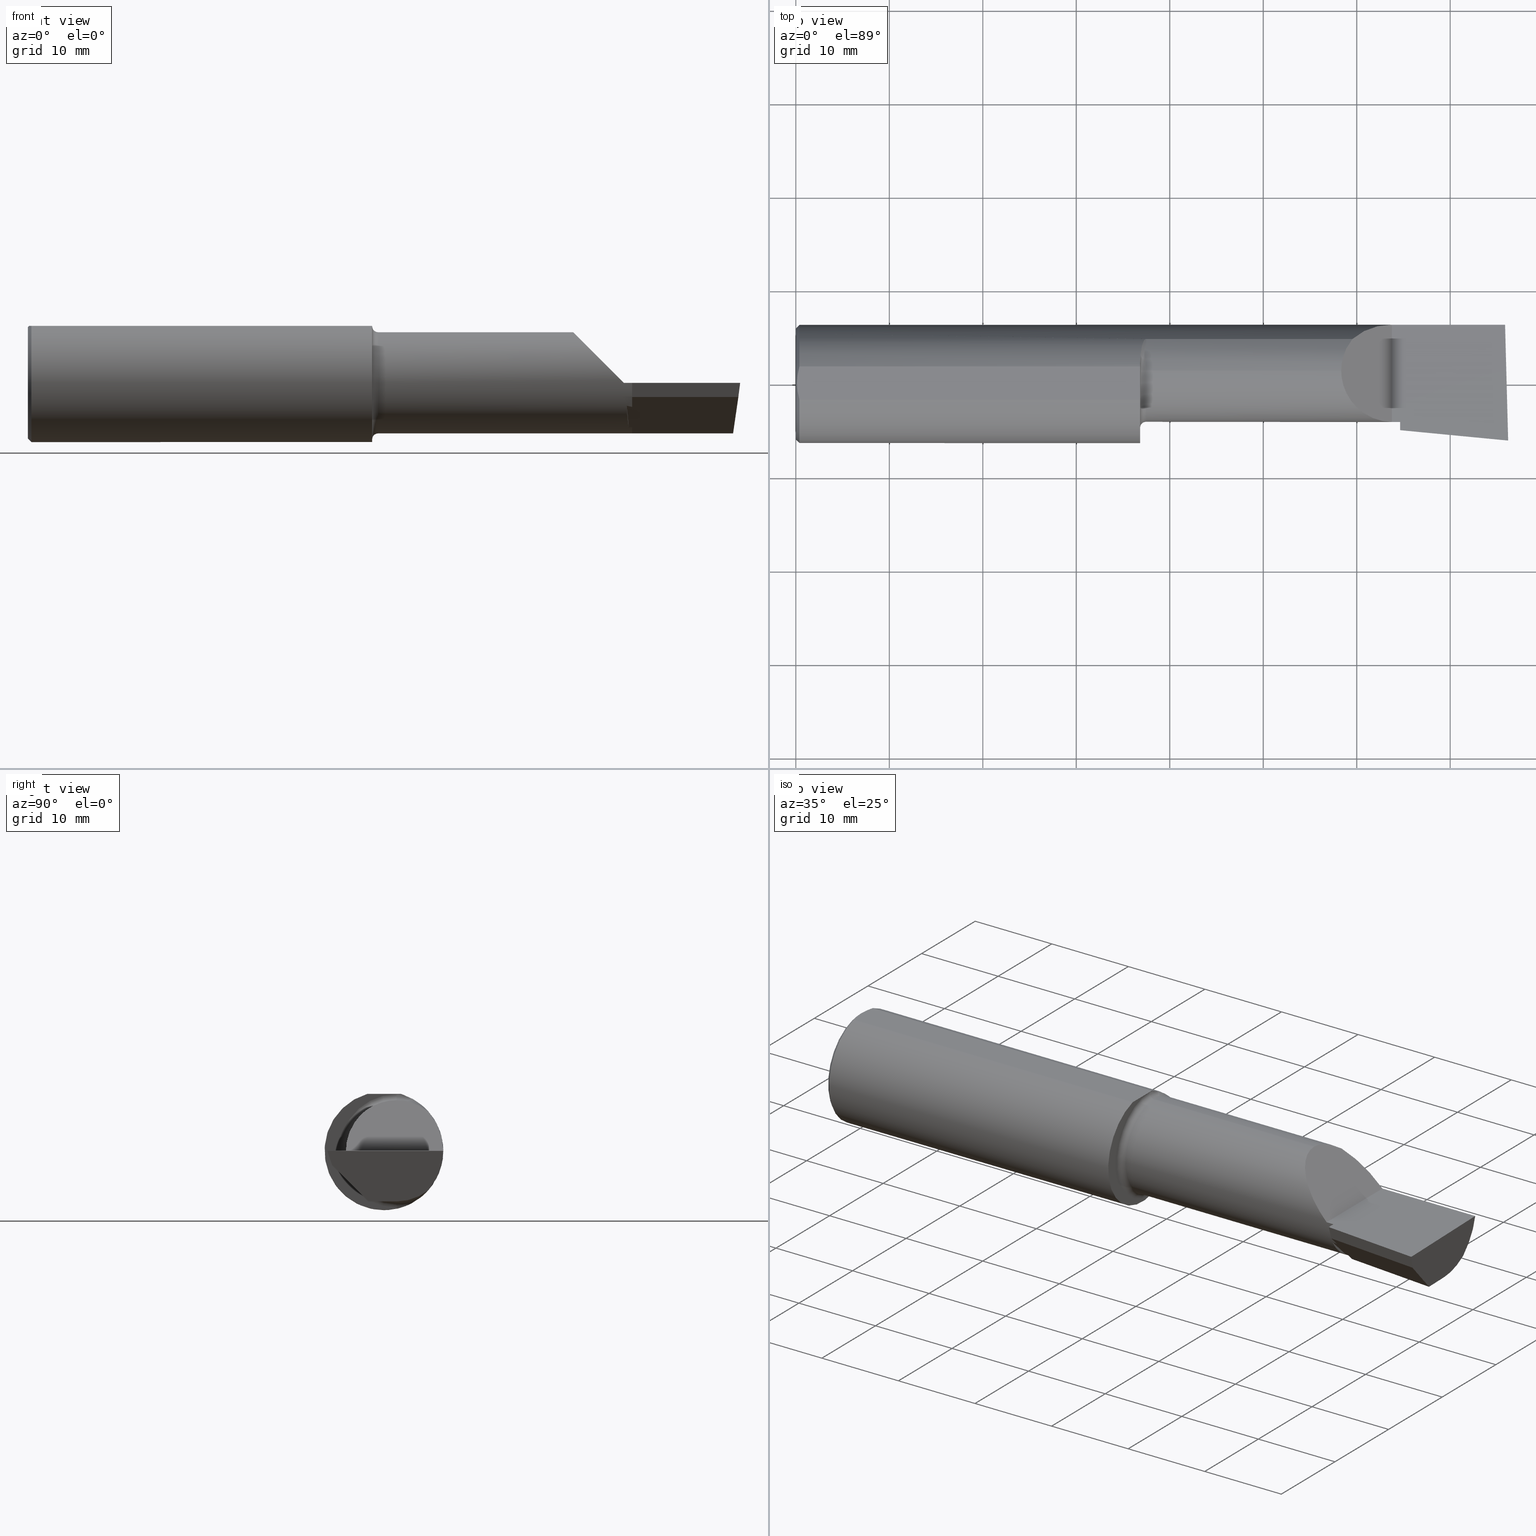
[diagram: canonical four-view strip — front | top / right | iso, engineering-drawing reading convention]
A machine part, canonical four-view strip (front | top / right | iso — engineering-drawing reading convention). The complete STEP part file that produces these views, byte-faithful:
ISO-10303-21;
HEADER;
FILE_DESCRIPTION (( 'STEP AP203' ),
    '1' );
FILE_NAME ('212148-LHB4901500.STEP',
    '2024-08-27T21:22:36',
    ( '' ),
    ( '' ),
    'SwSTEP 2.0',
    'SolidWorks 2024',
    '' );
FILE_SCHEMA (( 'CONFIG_CONTROL_DESIGN' ));
ENDSEC;

DATA;
#1 = CARTESIAN_POINT ( 'NONE',  ( 1.461285743882607902, 0.1704402150608106403, -0.1827701868778706662 ) ) ;
#2 = ORIENTED_EDGE ( 'NONE', *, *, #28, .T. ) ;
#3 = PERSON_AND_ORGANIZATION_ROLE ( 'creator' ) ;
#4 = DIRECTION ( 'NONE',  ( -1.000000000000000000, -0.000000000000000000, -0.000000000000000000 ) ) ;
#5 = AXIS2_PLACEMENT_3D ( 'NONE', #576, #339, #519 ) ;
#6 = VERTEX_POINT ( 'NONE', #417 ) ;
#7 = CC_DESIGN_APPROVAL ( #453, ( #139 ) ) ;
#8 =( NAMED_UNIT ( * ) SI_UNIT ( $, .STERADIAN. ) SOLID_ANGLE_UNIT ( ) );
#9 = CARTESIAN_POINT ( 'NONE',  ( 2.344079160038592846, 0.1868028301886826281, 0.1659208399614056639 ) ) ;
#10 = CARTESIAN_POINT ( 'NONE',  ( 0.000000000000000000, 0.06997856814768384226, 0.2398499999999999244 ) ) ;
#11 = PERSON_AND_ORGANIZATION_ROLE ( 'design_supplier' ) ;
#12 = DIRECTION ( 'NONE',  ( 0.000000000000000000, -1.000000000000000000, 2.565624566557734573E-16 ) ) ;
#13 = ORIENTED_EDGE ( 'NONE', *, *, #38, .T. ) ;
#14 = CARTESIAN_POINT ( 'NONE',  ( 1.450000000000000178, 0.08036415094339564857, -0.2365726648265752963 ) ) ;
#15 = EDGE_CURVE ( 'NONE', #276, #450, #540, .T. ) ;
#16 = DIRECTION ( 'NONE',  ( 0.000000000000000000, 0.000000000000000000, 1.000000000000000000 ) ) ;
#17 = VECTOR ( 'NONE', #261, 39.37007874015748143 ) ;
#18 = AXIS2_PLACEMENT_3D ( 'NONE', #208, #438, #625 ) ;
#19 = EDGE_CURVE ( 'NONE', #725, #155, #345, .T. ) ;
#20 = CARTESIAN_POINT ( 'NONE',  ( 2.519046046773246061, -0.1728339770796962771, -0.05999999999999962308 ) ) ;
#21 = CARTESIAN_POINT ( 'NONE',  ( 0.01499999999999998904, 3.059780027669661931E-17, 0.2498499999999999888 ) ) ;
#22 = CARTESIAN_POINT ( 'NONE',  ( 1.474999999999999867, 0.05299999999999998462, 0.000000000000000000 ) ) ;
#23 = FACE_OUTER_BOUND ( 'NONE', #340, .T. ) ;
#24 = CARTESIAN_POINT ( 'NONE',  ( 2.545000000000000373, -0.1753330585328639335, -0.05999999999999962308 ) ) ;
#25 = ORIENTED_EDGE ( 'NONE', *, *, #755, .T. ) ;
#26 = AXIS2_PLACEMENT_3D ( 'NONE', #583, #172, #645 ) ;
#27 = CARTESIAN_POINT ( 'NONE',  ( 1.450000000000000178, 0.08036415094339564857, -0.2365726648265752963 ) ) ;
#28 = EDGE_CURVE ( 'NONE', #43, #215, #728, .T. ) ;
#29 = ORIENTED_EDGE ( 'NONE', *, *, #153, .T. ) ;
#30 = FACE_OUTER_BOUND ( 'NONE', #422, .T. ) ;
#31 = CARTESIAN_POINT ( 'NONE',  ( 0.000000000000000000, 0.000000000000000000, 0.000000000000000000 ) ) ;
#32 = ORIENTED_EDGE ( 'NONE', *, *, #759, .F. ) ;
#33 = DATE_AND_TIME ( #542, #742 ) ;
#34 = DIRECTION ( 'NONE',  ( -1.000000000000000000, -0.000000000000000000, -0.000000000000000000 ) ) ;
#35 = EDGE_CURVE ( 'NONE', #457, #362, #78, .T. ) ;
#36 = PLANE ( 'NONE',  #717 ) ;
#37 = ORIENTED_EDGE ( 'NONE', *, *, #117, .F. ) ;
#38 = EDGE_CURVE ( 'NONE', #116, #679, #66, .T. ) ;
#39 = VECTOR ( 'NONE', #762, 39.37007874015748143 ) ;
#40 = AXIS2_PLACEMENT_3D ( 'NONE', #41, #230, #278 ) ;
#41 = CARTESIAN_POINT ( 'NONE',  ( 2.519046046773246061, -0.1728339770796962771, -0.05999999999999962308 ) ) ;
#42 = CARTESIAN_POINT ( 'NONE',  ( 2.968970726278978400, 0.1868028301886790754, -0.1659208399614091056 ) ) ;
#43 = VERTEX_POINT ( 'NONE', #214 ) ;
#44 = CARTESIAN_POINT ( 'NONE',  ( 2.545000000000000373, -0.1601499999999999868, 6.926044079467337534E-16 ) ) ;
#45 = FACE_OUTER_BOUND ( 'NONE', #490, .T. ) ;
#46 = ORIENTED_EDGE ( 'NONE', *, *, #264, .F. ) ;
#47 = EDGE_CURVE ( 'NONE', #267, #62, #600, .T. ) ;
#48 = MECHANICAL_CONTEXT ( 'NONE', #503, 'mechanical' ) ;
#49 = CARTESIAN_POINT ( 'NONE',  ( 7.317949869918442680E-32, -0.1601500000000000423, 6.926044079467337534E-16 ) ) ;
#50 = ADVANCED_FACE ( 'NONE', ( #209 ), #81, .T. ) ;
#51 = ORIENTED_EDGE ( 'NONE', *, *, #317, .T. ) ;
#52 = CIRCLE ( 'NONE', #398, 0.2131500000000001172 ) ;
#53 = VECTOR ( 'NONE', #677, 39.37007874015748143 ) ;
#54 = CARTESIAN_POINT ( 'NONE',  ( 2.296849999999997838, 0.05299999999999998462, 0.2131500000000000616 ) ) ;
#55 = ORIENTED_EDGE ( 'NONE', *, *, #28, .F. ) ;
#56 = APPLICATION_PROTOCOL_DEFINITION ( 'international standard', 'config_control_design', 1994, #503 ) ;
#57 = DIRECTION ( 'NONE',  ( 1.000000000000000000, 0.000000000000000000, 0.000000000000000000 ) ) ;
#58 = ORIENTED_EDGE ( 'NONE', *, *, #297, .F. ) ;
#59 = APPROVAL_DATE_TIME ( #590, #241 ) ;
#60 = CARTESIAN_POINT ( 'NONE',  ( 0.004999999999999696527, 5.665694225652706815E-17, 0.2398500000000000076 ) ) ;
#61 = EDGE_CURVE ( 'NONE', #642, #697, #189, .T. ) ;
#62 = VERTEX_POINT ( 'NONE', #325 ) ;
#63 = PERSON_AND_ORGANIZATION ( #507, #367 ) ;
#64 = CIRCLE ( 'NONE', #103, 0.2498499999999999888 ) ;
#65 = CARTESIAN_POINT ( 'NONE',  ( 2.531082512009717345, -0.04783050615766543806, -0.1877927888072089824 ) ) ;
#66 = CIRCLE ( 'NONE', #657, 0.2131500000000001172 ) ;
#67 = VERTEX_POINT ( 'NONE', #24 ) ;
#68 = AXIS2_PLACEMENT_3D ( 'NONE', #143, #381, #488 ) ;
#69 = SECURITY_CLASSIFICATION_LEVEL ( 'unclassified' ) ;
#70 = DIRECTION ( 'NONE',  ( -1.000000000000000000, -0.000000000000000000, -0.000000000000000000 ) ) ;
#71 = ORIENTED_EDGE ( 'NONE', *, *, #185, .F. ) ;
#72 = ADVANCED_FACE ( 'NONE', ( #318 ), #296, .F. ) ;
#73 = CARTESIAN_POINT ( 'NONE',  ( 1.451227564404961479, 0.1217005943024282583, -0.2193523119135143140 ) ) ;
#74 = CARTESIAN_POINT ( 'NONE',  ( 2.296849999999997838, -0.07186037918017462722, 0.2131500000000000339 ) ) ;
#75 = EDGE_CURVE ( 'NONE', #520, #272, #445, .T. ) ;
#76 = CARTESIAN_POINT ( 'NONE',  ( 2.545000000000000373, -0.1943384830701201382, 6.925661515187917647E-16 ) ) ;
#77 = DIRECTION ( 'NONE',  ( 0.000000000000000000, 0.000000000000000000, 1.000000000000000000 ) ) ;
#78 = CIRCLE ( 'NONE', #126, 0.2381500000000001394 ) ;
#79 = AXIS2_PLACEMENT_3D ( 'NONE', #662, #560, #321 ) ;
#80 = DIRECTION ( 'NONE',  ( -1.000000000000000000, -0.000000000000000000, -0.000000000000000000 ) ) ;
#81 = CYLINDRICAL_SURFACE ( 'NONE', #331, 0.2131500000000000616 ) ;
#82 = ORIENTED_EDGE ( 'NONE', *, *, #273, .F. ) ;
#83 = CARTESIAN_POINT ( 'NONE',  ( 1.474999999999999867, 0.05299999999999998462, 0.000000000000000000 ) ) ;
#84 = DIRECTION ( 'NONE',  ( -1.000000000000000000, -0.000000000000000000, -0.000000000000000000 ) ) ;
#85 = ORIENTED_EDGE ( 'NONE', *, *, #566, .F. ) ;
#86 = PLANE ( 'NONE',  #68 ) ;
#87 = CARTESIAN_POINT ( 'NONE',  ( 2.968970726278978400, 0.1868028301886790754, -0.1659208399614091056 ) ) ;
#88 = ORIENTED_EDGE ( 'NONE', *, *, #755, .F. ) ;
#89 = APPROVAL_DATE_TIME ( #33, #355 ) ;
#90 = VECTOR ( 'NONE', #34, 39.37007874015748143 ) ;
#91 = DIRECTION ( 'NONE',  ( -1.000000000000000000, -0.000000000000000000, -0.000000000000000000 ) ) ;
#92 = CARTESIAN_POINT ( 'NONE',  ( 1.450000000000000178, 0.08036415094339564857, 0.2365726648265752963 ) ) ;
#93 = VERTEX_POINT ( 'NONE', #671 ) ;
#94 = EDGE_CURVE ( 'NONE', #653, #267, #466, .T. ) ;
#95 = CARTESIAN_POINT ( 'NONE',  ( 1.450000000000000178, 0.05299999999999998462, 0.2381500000000001394 ) ) ;
#96 =( BOUNDED_CURVE ( )  B_SPLINE_CURVE ( 3, ( #522, #235, #386, #622 ),
 .UNSPECIFIED., .F., .T. ) 
 B_SPLINE_CURVE_WITH_KNOTS ( ( 4, 4 ),
 ( 0.6220170400680000711, 1.348282100702885566 ),
 .UNSPECIFIED. ) 
 CURVE ( )  GEOMETRIC_REPRESENTATION_ITEM ( )  RATIONAL_B_SPLINE_CURVE ( ( 1.000000000000000000, 0.9565258159410993111, 0.9565258159410993111, 1.000000000000000000 ) ) 
 REPRESENTATION_ITEM ( '' )  );
#97 = CARTESIAN_POINT ( 'NONE',  ( 3.028162759442341478, -0.2374125321900709129, 0.2380275191859496930 ) ) ;
#98 = ORIENTED_EDGE ( 'NONE', *, *, #120, .T. ) ;
#99 = CC_DESIGN_DATE_AND_TIME_ASSIGNMENT ( #476, #521, ( #635 ) ) ;
#100 = CARTESIAN_POINT ( 'NONE',  ( 1.449999999999999289, 0.09103905338546504356, 0.2329463816641086094 ) ) ;
#101 = CARTESIAN_POINT ( 'NONE',  ( 2.545000000000000373, -0.1952503421026562103, 0.002878732955684672624 ) ) ;
#102 = ORIENTED_EDGE ( 'NONE', *, *, #203, .F. ) ;
#103 = AXIS2_PLACEMENT_3D ( 'NONE', #456, #165, #225 ) ;
#104 = LINE ( 'NONE', #335, #53 ) ;
#105 = DIRECTION ( 'NONE',  ( 0.000000000000000000, 1.000000000000000000, -1.138839417068644240E-16 ) ) ;
#106 = ORIENTED_EDGE ( 'NONE', *, *, #664, .T. ) ;
#107 = CARTESIAN_POINT ( 'NONE',  ( 2.545000000000000373, -0.1345157694617468702, -0.1013447517297714345 ) ) ;
#108 = LINE ( 'NONE', #101, #434 ) ;
#109 = ORIENTED_EDGE ( 'NONE', *, *, #131, .T. ) ;
#110 = CARTESIAN_POINT ( 'NONE',  ( 1.452700393434439796, 0.1312406203802480853, 0.2128933010837854023 ) ) ;
#111 = DIRECTION ( 'NONE',  ( -0.000000000000000000, 2.565624566557734573E-16, 1.000000000000000000 ) ) ;
#112 = ORIENTED_EDGE ( 'NONE', *, *, #748, .T. ) ;
#113 = VECTOR ( 'NONE', #397, 39.37007874015748854 ) ;
#114 =( GEOMETRIC_REPRESENTATION_CONTEXT ( 3 ) GLOBAL_UNCERTAINTY_ASSIGNED_CONTEXT ( ( #380 ) ) GLOBAL_UNIT_ASSIGNED_CONTEXT ( ( #419, #125, #8 ) ) REPRESENTATION_CONTEXT ( 'NONE', 'WORKASPACE' ) );
#115 = CARTESIAN_POINT ( 'NONE',  ( 0.005899890343961516036, 0.02378560009989256346, 0.2398500000000000354 ) ) ;
#116 = VERTEX_POINT ( 'NONE', #442 ) ;
#117 = EDGE_CURVE ( 'NONE', #173, #520, #382, .T. ) ;
#118 = DIRECTION ( 'NONE',  ( 0.9953961983671787417, -0.09584575252022418945, -1.044132340447638199E-16 ) ) ;
#119 = VERTEX_POINT ( 'NONE', #492 ) ;
#120 = EDGE_CURVE ( 'NONE', #753, #220, #423, .T. ) ;
#121 = CARTESIAN_POINT ( 'NONE',  ( 1.457342647456792317, 0.1582204157543817824, 0.1936739931581292762 ) ) ;
#122 = APPLICATION_CONTEXT ( 'configuration controlled 3d designs of mechanical parts and assemblies' ) ;
#123 = DIRECTION ( 'NONE',  ( 1.000000000000000000, 0.000000000000000000, 0.000000000000000000 ) ) ;
#124 = ORIENTED_EDGE ( 'NONE', *, *, #659, .F. ) ;
#125 =( NAMED_UNIT ( * ) PLANE_ANGLE_UNIT ( ) SI_UNIT ( $, .RADIAN. ) );
#126 = AXIS2_PLACEMENT_3D ( 'NONE', #734, #489, #270 ) ;
#127 = CARTESIAN_POINT ( 'NONE',  ( 1.450000000000000178, 0.05300000000000001238, -0.2381500000000001394 ) ) ;
#128 = AXIS2_PLACEMENT_3D ( 'NONE', #159, #152, #620 ) ;
#129 = CARTESIAN_POINT ( 'NONE',  ( 0.000000000000000000, 0.000000000000000000, 0.000000000000000000 ) ) ;
#130 = ADVANCED_FACE ( 'NONE', ( #138 ), #275, .F. ) ;
#131 = EDGE_CURVE ( 'NONE', #149, #642, #701, .T. ) ;
#132 = DIRECTION ( 'NONE',  ( -1.000000000000000000, 0.000000000000000000, 1.056584362726326271E-16 ) ) ;
#133 = EDGE_LOOP ( 'NONE', ( #557, #98, #440, #455, #109, #356, #102, #569, #106, #243 ) ) ;
#134 = CARTESIAN_POINT ( 'NONE',  ( 1.450000000000000178, 0.06997856814768384226, 0.2398500000000000076 ) ) ;
#135 = CARTESIAN_POINT ( 'NONE',  ( 2.545000000000000373, -0.1345157694617468702, -0.1013447517297714345 ) ) ;
#136 = VERTEX_POINT ( 'NONE', #546 ) ;
#137 = CARTESIAN_POINT ( 'NONE',  ( 0.004999999999999696527, 5.665694225652706815E-17, 0.2398500000000000076 ) ) ;
#138 = FACE_OUTER_BOUND ( 'NONE', #348, .T. ) ;
#139 = SECURITY_CLASSIFICATION ( '', '', #69 ) ;
#140 = ORIENTED_EDGE ( 'NONE', *, *, #474, .T. ) ;
#141 = CARTESIAN_POINT ( 'NONE',  ( 2.988460977461673274, -0.06683733097719032901, -0.2131499999999999506 ) ) ;
#142 = ORIENTED_EDGE ( 'NONE', *, *, #506, .T. ) ;
#143 = CARTESIAN_POINT ( 'NONE',  ( 2.545000000000000373, -0.2043384830701200638, 0.000000000000000000 ) ) ;
#144 = CARTESIAN_POINT ( 'NONE',  ( 2.510000000000000231, -0.1601500000000002089, 4.274017329024261857E-16 ) ) ;
#145 = ORIENTED_EDGE ( 'NONE', *, *, #427, .T. ) ;
#146 = PERSON_AND_ORGANIZATION ( #507, #367 ) ;
#147 = LINE ( 'NONE', #346, #358 ) ;
#148 = CARTESIAN_POINT ( 'NONE',  ( 2.545000000000000373, -0.05074392122494132684, -0.1861991442216455461 ) ) ;
#149 = VERTEX_POINT ( 'NONE', #374 ) ;
#150 = AXIS2_PLACEMENT_3D ( 'NONE', #629, #401, #343 ) ;
#151 = VECTOR ( 'NONE', #575, 39.37007874015748143 ) ;
#152 = DIRECTION ( 'NONE',  ( -1.000000000000000000, -0.000000000000000000, -0.000000000000000000 ) ) ;
#153 = EDGE_CURVE ( 'NONE', #43, #725, #609, .T. ) ;
#154 = FACE_OUTER_BOUND ( 'NONE', #705, .T. ) ;
#155 = VERTEX_POINT ( 'NONE', #612 ) ;
#156 = CARTESIAN_POINT ( 'NONE',  ( 2.448145753305726480, 0.2498499999999998500, 0.06185424669427373734 ) ) ;
#157 = LINE ( 'NONE', #394, #162 ) ;
#158 = ORIENTED_EDGE ( 'NONE', *, *, #175, .T. ) ;
#159 = CARTESIAN_POINT ( 'NONE',  ( 0.000000000000000000, 0.000000000000000000, 0.000000000000000000 ) ) ;
#160 = DIRECTION ( 'NONE',  ( -0.1175789623991730093, 0.000000000000000000, -0.9930635365378863710 ) ) ;
#161 = ORIENTED_EDGE ( 'NONE', *, *, #15, .F. ) ;
#162 = VECTOR ( 'NONE', #105, 39.37007874015748143 ) ;
#163 = CC_DESIGN_APPROVAL ( #241, ( #635 ) ) ;
#164 = DIRECTION ( 'NONE',  ( 0.000000000000000000, 0.000000000000000000, -1.000000000000000000 ) ) ;
#165 = DIRECTION ( 'NONE',  ( -1.000000000000000000, -0.000000000000000000, -0.000000000000000000 ) ) ;
#166 = ORIENTED_EDGE ( 'NONE', *, *, #153, .F. ) ;
#167 = EDGE_CURVE ( 'NONE', #136, #753, #432, .T. ) ;
#168 = LENGTH_MEASURE_WITH_UNIT ( LENGTH_MEASURE( 0.02539999999999999897 ), #695 );
#169 = CARTESIAN_POINT ( 'NONE',  ( 1.474999999999999867, 0.1868028301886783815, -0.1659208399614097162 ) ) ;
#170 = VERTEX_POINT ( 'NONE', #294 ) ;
#171 = CARTESIAN_POINT ( 'NONE',  ( 1.473549916698492224, 0.1868028301886784648, 0.1659208399614097440 ) ) ;
#172 = DIRECTION ( 'NONE',  ( 0.09140971883575742252, 0.9493262270931228652, 0.3007057995042735632 ) ) ;
#173 = VERTEX_POINT ( 'NONE', #228 ) ;
#174 =( BOUNDED_CURVE ( )  B_SPLINE_CURVE ( 3, ( #65, #184, #593, #407 ),
 .UNSPECIFIED., .F., .T. ) 
 B_SPLINE_CURVE_WITH_KNOTS ( ( 4, 4 ),
 ( 5.205137849474819056, 5.812503257434983972 ),
 .UNSPECIFIED. ) 
 CURVE ( )  GEOMETRIC_REPRESENTATION_ITEM ( )  RATIONAL_B_SPLINE_CURVE ( ( 1.000000000000000000, 0.9694944665783487014, 0.9694944665783487014, 1.000000000000000000 ) ) 
 REPRESENTATION_ITEM ( '' )  );
#175 = EDGE_CURVE ( 'NONE', #667, #116, #632, .T. ) ;
#176 = DIRECTION ( 'NONE',  ( 0.000000000000000000, 0.000000000000000000, 1.000000000000000000 ) ) ;
#177 = AXIS2_PLACEMENT_3D ( 'NONE', #354, #179, #468 ) ;
#178 = CC_DESIGN_APPROVAL ( #355, ( #475 ) ) ;
#179 = DIRECTION ( 'NONE',  ( -0.9953961983671787417, 0.09584575252022485559, -1.576025383182017916E-15 ) ) ;
#180 = ADVANCED_FACE ( 'NONE', ( #154 ), #36, .F. ) ;
#181 = ORIENTED_EDGE ( 'NONE', *, *, #311, .F. ) ;
#182 = LINE ( 'NONE', #528, #511 ) ;
#183 = ORIENTED_EDGE ( 'NONE', *, *, #617, .T. ) ;
#184 = CARTESIAN_POINT ( 'NONE',  ( 2.527364221733841454, -0.08644642713185411720, -0.1670589636038933290 ) ) ;
#185 = EDGE_CURVE ( 'NONE', #362, #667, #692, .T. ) ;
#186 = ORIENTED_EDGE ( 'NONE', *, *, #317, .F. ) ;
#187 = PRODUCT_DEFINITION_SHAPE ( 'NONE', 'NONE',  #635 ) ;
#188 = EDGE_CURVE ( 'NONE', #391, #93, #52, .T. ) ;
#189 = CIRCLE ( 'NONE', #385, 0.2131499999999999784 ) ;
#190 = DIRECTION ( 'NONE',  ( -1.056584362726326271E-16, 0.000000000000000000, -1.000000000000000000 ) ) ;
#191 = VECTOR ( 'NONE', #384, 39.37007874015748143 ) ;
#192 = ORIENTED_EDGE ( 'NONE', *, *, #712, .F. ) ;
#193 = DIRECTION ( 'NONE',  ( 0.02677973311239230728, -0.9996413586354002678, -2.790415018084746601E-18 ) ) ;
#194 = CARTESIAN_POINT ( 'NONE',  ( 2.545000000000000373, 0.05299999999999998462, 0.000000000000000000 ) ) ;
#195 = ORIENTED_EDGE ( 'NONE', *, *, #47, .T. ) ;
#196 = CYLINDRICAL_SURFACE ( 'NONE', #79, 0.2131500000000000616 ) ;
#197 = MANIFOLD_SOLID_BREP ( 'Extrude7', #221 ) ;
#198 = DIRECTION ( 'NONE',  ( 0.000000000000000000, 0.000000000000000000, -1.000000000000000000 ) ) ;
#199 = ORIENTED_EDGE ( 'NONE', *, *, #167, .T. ) ;
#200 = ADVANCED_FACE ( 'NONE', ( #45 ), #287, .F. ) ;
#201 = CARTESIAN_POINT ( 'NONE',  ( 1.450000000000000178, -0.1851500000000001478, 0.000000000000000000 ) ) ;
#202 = CARTESIAN_POINT ( 'NONE',  ( 2.966986964385319947, 0.05211560253549540889, -0.2131499999999999784 ) ) ;
#203 = EDGE_CURVE ( 'NONE', #267, #697, #572, .T. ) ;
#204 = VECTOR ( 'NONE', #123, 39.37007874015748143 ) ;
#205 = DESIGN_CONTEXT ( 'detailed design', #122, 'design' ) ;
#206 = AXIS2_PLACEMENT_3D ( 'NONE', #201, #495, #599 ) ;
#207 = B_SPLINE_CURVE_WITH_KNOTS ( 'NONE', 3,
 ( #510, #100, #341, #305, #110, #698, #121, #237, #467, #363, #470, #463, #353, #582, #171, #538 ),
 .UNSPECIFIED., .F., .F.,
 ( 4, 2, 2, 2, 2, 2, 2, 4 ),
 ( 0.0001284169230012253212, 0.0009841683951816687474, 0.001839919867362112228, 0.002695671339542556142, 0.003123547075632778641, 0.003337484943677886205, 0.003444453877700439336, 0.003551422811722992467 ),
 .UNSPECIFIED. ) ;
#208 = CARTESIAN_POINT ( 'NONE',  ( 2.510000000000000231, -0.2500000000000000555, 4.274017329024261857E-16 ) ) ;
#209 = FACE_OUTER_BOUND ( 'NONE', #326, .T. ) ;
#210 = ORIENTED_EDGE ( 'NONE', *, *, #213, .T. ) ;
#211 = APPROVAL_ROLE ( '' ) ;
#212 = CARTESIAN_POINT ( 'NONE',  ( 2.010000000000000231, 0.1868028301886790754, -0.1659208399614091056 ) ) ;
#213 = EDGE_CURVE ( 'NONE', #67, #561, #108, .T. ) ;
#214 = CARTESIAN_POINT ( 'NONE',  ( 0.000000000000000000, 0.000000000000000000, -0.2348499999999996424 ) ) ;
#215 = VERTEX_POINT ( 'NONE', #512 ) ;
#216 = COORDINATED_UNIVERSAL_TIME_OFFSET ( 8, 0, .BEHIND. ) ;
#217 = EDGE_CURVE ( 'NONE', #119, #149, #738, .T. ) ;
#218 = CARTESIAN_POINT ( 'NONE',  ( 0.01499999999999998904, 0.000000000000000000, -0.2498499999999999888 ) ) ;
#219 = CARTESIAN_POINT ( 'NONE',  ( 2.510000000000000231, -0.1601500000000002089, 4.274017329024261857E-16 ) ) ;
#220 = VERTEX_POINT ( 'NONE', #148 ) ;
#221 = CLOSED_SHELL ( 'NONE', ( #72, #478, #643, #50, #553, #687, #482, #586, #402, #418, #621, #200, #130, #722, #180, #608, #415, #541, #579, #372, #300 ) ) ;
#222 = DATE_AND_TIME ( #558, #606 ) ;
#223 = CIRCLE ( 'NONE', #461, 0.2131500000000001172 ) ;
#224 = CARTESIAN_POINT ( 'NONE',  ( 1.474999999999999867, 0.1868028301886785203, 0.1659208399614095775 ) ) ;
#225 = DIRECTION ( 'NONE',  ( 0.000000000000000000, 0.000000000000000000, 1.000000000000000000 ) ) ;
#226 = ORIENTED_EDGE ( 'NONE', *, *, #61, .F. ) ;
#227 = LINE ( 'NONE', #212, #151 ) ;
#228 = CARTESIAN_POINT ( 'NONE',  ( 2.970126340504449569, -0.06507190623553191222, -0.2131499999999999506 ) ) ;
#229 = VERTEX_POINT ( 'NONE', #92 ) ;
#230 = DIRECTION ( 'NONE',  ( 0.06836202603457076921, 0.7099667855717585185, 0.7009092642998475675 ) ) ;
#231 = DIRECTION ( 'NONE',  ( 0.000000000000000000, 0.000000000000000000, -1.000000000000000000 ) ) ;
#232 = ORIENTED_EDGE ( 'NONE', *, *, #311, .T. ) ;
#233 = VECTOR ( 'NONE', #193, 39.37007874015748854 ) ;
#234 = APPROVAL_STATUS ( 'not_yet_approved' ) ;
#235 = CARTESIAN_POINT ( 'NONE',  ( 2.973345850378709798, 0.2278791102234773713, -0.1196748990301328835 ) ) ;
#236 = ORIENTED_EDGE ( 'NONE', *, *, #617, .F. ) ;
#237 = CARTESIAN_POINT ( 'NONE',  ( 1.461269318387891092, 0.1703938977634097685, 0.1828127877825257985 ) ) ;
#238 = DIRECTION ( 'NONE',  ( -1.000000000000000000, -0.000000000000000000, -0.000000000000000000 ) ) ;
#239 = ORIENTED_EDGE ( 'NONE', *, *, #289, .F. ) ;
#240 = PERSON_AND_ORGANIZATION ( #507, #367 ) ;
#241 = APPROVAL ( #703, 'UNSPECIFIED' ) ;
#242 = CARTESIAN_POINT ( 'NONE',  ( 1.457341173198634543, 0.1582250006961548328, -0.1936724403215135948 ) ) ;
#243 = ORIENTED_EDGE ( 'NONE', *, *, #563, .F. ) ;
#244 = CALENDAR_DATE ( 2024, 27, 8 ) ;
#245 = VECTOR ( 'NONE', #377, 39.37007874015748143 ) ;
#246 = APPROVAL_PERSON_ORGANIZATION ( #146, #453, #211 ) ;
#247 = FACE_OUTER_BOUND ( 'NONE', #731, .T. ) ;
#248 = EDGE_LOOP ( 'NONE', ( #716, #55, #29, #481, #292 ) ) ;
#249 = CARTESIAN_POINT ( 'NONE',  ( 0.000000000000000000, 0.000000000000000000, 0.000000000000000000 ) ) ;
#250 = FACE_OUTER_BOUND ( 'NONE', #337, .T. ) ;
#251 = ORIENTED_EDGE ( 'NONE', *, *, #566, .T. ) ;
#252 = CARTESIAN_POINT ( 'NONE',  ( 0.004999999999999972349, 0.01185123536186991414, 0.2398500000000000631 ) ) ;
#253 = DIRECTION ( 'NONE',  ( -1.000000000000000000, -0.000000000000000000, -0.000000000000000000 ) ) ;
#254 = CIRCLE ( 'NONE', #150, 0.02499999999999993894 ) ;
#255 = DIRECTION ( 'NONE',  ( -1.000000000000000000, -0.000000000000000000, -0.000000000000000000 ) ) ;
#256 = AXIS2_PLACEMENT_3D ( 'NONE', #370, #255, #313 ) ;
#257 = DIRECTION ( 'NONE',  ( 0.000000000000000000, 0.000000000000000000, 1.000000000000000000 ) ) ;
#258 = ORIENTED_EDGE ( 'NONE', *, *, #352, .F. ) ;
#259 =( BOUNDED_CURVE ( )  B_SPLINE_CURVE ( 3, ( #9, #359, #641, #54 ),
 .UNSPECIFIED., .F., .T. ) 
 B_SPLINE_CURVE_WITH_KNOTS ( ( 4, 4 ),
 ( 5.604538515477326399, 6.283185307179586232 ),
 .UNSPECIFIED. ) 
 CURVE ( )  GEOMETRIC_REPRESENTATION_ITEM ( )  RATIONAL_B_SPLINE_CURVE ( ( 1.000000000000000000, 0.9619867256453000781, 0.9619867256453000781, 1.000000000000000000 ) ) 
 REPRESENTATION_ITEM ( '' )  );
#260 = FACE_OUTER_BOUND ( 'NONE', #408, .T. ) ;
#261 = DIRECTION ( 'NONE',  ( -0.02677973311239234197, 0.9996413586354002678, -2.566230189353010261E-16 ) ) ;
#262 = EDGE_CURVE ( 'NONE', #457, #425, #64, .T. ) ;
#263 = ORIENTED_EDGE ( 'NONE', *, *, #696, .F. ) ;
#264 = EDGE_CURVE ( 'NONE', #362, #93, #254, .T. ) ;
#265 = CARTESIAN_POINT ( 'NONE',  ( 1.455537042546467097, 0.1495003888704975470, -0.2004994225712683209 ) ) ;
#266 = DIRECTION ( 'NONE',  ( 0.000000000000000000, 0.000000000000000000, 1.000000000000000000 ) ) ;
#267 = VERTEX_POINT ( 'NONE', #219 ) ;
#268 = DIRECTION ( 'NONE',  ( -1.000000000000000000, -0.000000000000000000, -0.000000000000000000 ) ) ;
#269 = VECTOR ( 'NONE', #118, 39.37007874015748143 ) ;
#270 = DIRECTION ( 'NONE',  ( 0.000000000000000000, 0.000000000000000000, 1.000000000000000000 ) ) ;
#271 = CONICAL_SURFACE ( 'NONE', #559, 0.2498499999999999888, 0.7853981633974603804 ) ;
#272 = VERTEX_POINT ( 'NONE', #42 ) ;
#273 = EDGE_CURVE ( 'NONE', #272, #758, #96, .T. ) ;
#274 = CARTESIAN_POINT ( 'NONE',  ( 2.344079160038592846, 0.1868028301886826281, 0.1659208399614056639 ) ) ;
#275 = PLANE ( 'NONE',  #473 ) ;
#276 = VERTEX_POINT ( 'NONE', #454 ) ;
#277 = APPROVAL_DATE_TIME ( #676, #453 ) ;
#278 = DIRECTION ( 'NONE',  ( 0.000000000000000000, -0.7025528302622682242, 0.7116315905652843554 ) ) ;
#279 = CARTESIAN_POINT ( 'NONE',  ( 0.01499999999999965423, -0.06997856814768402267, 0.2398500000000000076 ) ) ;
#280 = ORIENTED_EDGE ( 'NONE', *, *, #19, .F. ) ;
#281 = CARTESIAN_POINT ( 'NONE',  ( 2.545000000000000373, 0.05299999999999996381, -0.2131499999999999784 ) ) ;
#282 = DIRECTION ( 'NONE',  ( 0.000000000000000000, 0.000000000000000000, 1.000000000000000000 ) ) ;
#283 = ORIENTED_EDGE ( 'NONE', *, *, #273, .T. ) ;
#284 = VECTOR ( 'NONE', #611, 39.37007874015748143 ) ;
#285 = LOCAL_TIME ( 14, 22, 36.00000000000000000, #709 ) ;
#286 = DIRECTION ( 'NONE',  ( 0.000000000000000000, 0.000000000000000000, -1.000000000000000000 ) ) ;
#287 = PLANE ( 'NONE',  #447 ) ;
#288 = ORIENTED_EDGE ( 'NONE', *, *, #451, .T. ) ;
#289 = EDGE_CURVE ( 'NONE', #215, #43, #584, .T. ) ;
#290 = LINE ( 'NONE', #396, #191 ) ;
#291 = CARTESIAN_POINT ( 'NONE',  ( 2.545000000000000373, -0.2043384830701200638, 0.000000000000000000 ) ) ;
#292 = ORIENTED_EDGE ( 'NONE', *, *, #297, .T. ) ;
#293 = APPLICATION_PROTOCOL_DEFINITION ( 'international standard', 'config_control_design', 1994, #122 ) ;
#294 = CARTESIAN_POINT ( 'NONE',  ( 2.992367153641838584, -0.2184096159518786329, -0.05999999999999964390 ) ) ;
#295 = EDGE_LOOP ( 'NONE', ( #71, #472, #375, #708 ) ) ;
#296 = TOROIDAL_SURFACE ( 'NONE', #571, 0.2381500000000001394, 0.02499999999999993894 ) ;
#297 = EDGE_CURVE ( 'NONE', #155, #517, #636, .T. ) ;
#298 = CARTESIAN_POINT ( 'NONE',  ( 1.472232603162240583, 0.1862758070845865754, -0.1665151405181437005 ) ) ;
#299 = ORIENTED_EDGE ( 'NONE', *, *, #188, .F. ) ;
#300 = ADVANCED_FACE ( 'NONE', ( #390 ), #626, .T. ) ;
#301 = CARTESIAN_POINT ( 'NONE',  ( 1.467016733372314308, 0.1817333077058759794, -0.1714754572696074453 ) ) ;
#302 = ORIENTED_EDGE ( 'NONE', *, *, #506, .F. ) ;
#303 = CARTESIAN_POINT ( 'NONE',  ( 1.470138573936400572, 0.1849738682364319986, -0.1679602226613264027 ) ) ;
#304 = EDGE_LOOP ( 'NONE', ( #302, #186, #524, #661, #694, #469 ) ) ;
#305 = CARTESIAN_POINT ( 'NONE',  ( 1.451680899895053667, 0.1215019751025622485, 0.2186055937858617793 ) ) ;
#306 = AXIS2_PLACEMENT_3D ( 'NONE', #539, #4, #710 ) ;
#307 = CC_DESIGN_SECURITY_CLASSIFICATION ( #139, ( #475 ) ) ;
#308 = PLANE ( 'NONE',  #177 ) ;
#309 = ORIENTED_EDGE ( 'NONE', *, *, #474, .F. ) ;
#310 = DIRECTION ( 'NONE',  ( 0.000000000000000000, 0.000000000000000000, 1.000000000000000000 ) ) ;
#311 = EDGE_CURVE ( 'NONE', #425, #450, #157, .T. ) ;
#312 = EDGE_LOOP ( 'NONE', ( #46, #514, #319, #460 ) ) ;
#313 = DIRECTION ( 'NONE',  ( 0.000000000000000000, 0.000000000000000000, 1.000000000000000000 ) ) ;
#314 = DIRECTION ( 'NONE',  ( 1.000000000000000000, 0.000000000000000000, 0.000000000000000000 ) ) ;
#315 = AXIS2_PLACEMENT_3D ( 'NONE', #420, #238, #471 ) ;
#316 = LINE ( 'NONE', #376, #387 ) ;
#317 = EDGE_CURVE ( 'NONE', #62, #758, #655, .T. ) ;
#318 = FACE_OUTER_BOUND ( 'NONE', #295, .T. ) ;
#319 = ORIENTED_EDGE ( 'NONE', *, *, #427, .F. ) ;
#320 = PRODUCT_RELATED_PRODUCT_CATEGORY ( 'detail', '', ( #713 ) ) ;
#321 = DIRECTION ( 'NONE',  ( 0.000000000000000000, 0.000000000000000000, 1.000000000000000000 ) ) ;
#322 = DIRECTION ( 'NONE',  ( -1.000000000000000000, -0.000000000000000000, -0.000000000000000000 ) ) ;
#323 = ORIENTED_EDGE ( 'NONE', *, *, #342, .T. ) ;
#324 = CARTESIAN_POINT ( 'NONE',  ( 3.000000000000000444, -0.2500000000000000555, 3.756290991288361679E-16 ) ) ;
#325 = CARTESIAN_POINT ( 'NONE',  ( 2.510000000000000231, 0.2498499999999998222, 4.274017329024261857E-16 ) ) ;
#326 = EDGE_LOOP ( 'NONE', ( #112, #479, #299, #263, #493 ) ) ;
#327 = EDGE_CURVE ( 'NONE', #276, #725, #547, .T. ) ;
#328 = DIMENSIONAL_EXPONENTS ( 1.000000000000000000, 0.000000000000000000, 0.000000000000000000, 0.000000000000000000, 0.000000000000000000, 0.000000000000000000, 0.000000000000000000 ) ;
#329 = B_SPLINE_CURVE_WITH_KNOTS ( 'NONE', 3,
 ( #405, #368, #298, #303, #587, #301, #531, #534, #1, #242, #265, #73, #723, #27 ),
 .UNSPECIFIED., .F., .F.,
 ( 4, 2, 2, 2, 2, 2, 4 ),
 ( 1.967619685288262155E-07, 0.0001090840123077909367, 0.0002179712626470530499, 0.0004357457633255789296, 0.0008712947646826322071, 0.001742392767396744400, 0.003484588772824965749 ),
 .UNSPECIFIED. ) ;
#330 = DIRECTION ( 'NONE',  ( 0.000000000000000000, 0.000000000000000000, 1.000000000000000000 ) ) ;
#331 = AXIS2_PLACEMENT_3D ( 'NONE', #556, #322, #77 ) ;
#332 = CARTESIAN_POINT ( 'NONE',  ( 1.474999999999999867, 0.05299999999999998462, 0.000000000000000000 ) ) ;
#333 = AXIS2_PLACEMENT_3D ( 'NONE', #324, #190, #132 ) ;
#334 = PERSON_AND_ORGANIZATION ( #507, #367 ) ;
#335 = CARTESIAN_POINT ( 'NONE',  ( 2.545000000000000373, -0.2196470971618796064, -0.01511331185988414039 ) ) ;
#336 = DIRECTION ( 'NONE',  ( -1.000000000000000000, -0.000000000000000000, -0.000000000000000000 ) ) ;
#337 = EDGE_LOOP ( 'NONE', ( #37, #288, #199, #433 ) ) ;
#338 = DIRECTION ( 'NONE',  ( 1.000000000000000000, 0.000000000000000000, 0.000000000000000000 ) ) ;
#339 = DIRECTION ( 'NONE',  ( -1.000000000000000000, -0.000000000000000000, -0.000000000000000000 ) ) ;
#340 = EDGE_LOOP ( 'NONE', ( #627, #443, #592, #195 ) ) ;
#341 = CARTESIAN_POINT ( 'NONE',  ( 1.450331894516964537, 0.1014003285145113342, 0.2286243840132589078 ) ) ;
#342 = EDGE_CURVE ( 'NONE', #667, #229, #741, .T. ) ;
#343 = DIRECTION ( 'NONE',  ( 0.000000000000000000, 0.000000000000000000, 1.000000000000000000 ) ) ;
#344 = ORIENTED_EDGE ( 'NONE', *, *, #75, .T. ) ;
#345 = CIRCLE ( 'NONE', #523, 0.2498499999999999888 ) ;
#346 = CARTESIAN_POINT ( 'NONE',  ( 2.984159346317753592, -0.1618214701366294805, -0.1165188729350212365 ) ) ;
#347 = DIRECTION ( 'NONE',  ( 0.000000000000000000, -1.138839417068644240E-16, -1.000000000000000000 ) ) ;
#348 = EDGE_LOOP ( 'NONE', ( #2, #604 ) ) ;
#349 = CARTESIAN_POINT ( 'NONE',  ( 0.01499999999999998904, 0.000000000000000000, 0.000000000000000000 ) ) ;
#350 = DIRECTION ( 'NONE',  ( 0.000000000000000000, -1.000000000000000000, 0.000000000000000000 ) ) ;
#351 = ORIENTED_EDGE ( 'NONE', *, *, #352, .T. ) ;
#352 = EDGE_CURVE ( 'NONE', #679, #683, #182, .T. ) ;
#353 = CARTESIAN_POINT ( 'NONE',  ( 1.470147539572908890, 0.1849815983377225415, 0.1679517088135078218 ) ) ;
#354 = CARTESIAN_POINT ( 'NONE',  ( 2.540709139270310946, 0.05214584048607593530, -0.2900000000000006461 ) ) ;
#355 = APPROVAL ( #234, 'UNSPECIFIED' ) ;
#356 = ORIENTED_EDGE ( 'NONE', *, *, #61, .T. ) ;
#357 = AXIS2_PLACEMENT_3D ( 'NONE', #97, #685, #160 ) ;
#358 = VECTOR ( 'NONE', #501, 39.37007874015748143 ) ;
#359 = CARTESIAN_POINT ( 'NONE',  ( 2.313215146136123224, 0.1485302233682088413, 0.1967848538638747313 ) ) ;
#360 = ORIENTED_EDGE ( 'NONE', *, *, #673, .F. ) ;
#361 = FACE_OUTER_BOUND ( 'NONE', #535, .T. ) ;
#362 = VERTEX_POINT ( 'NONE', #127 ) ;
#363 = CARTESIAN_POINT ( 'NONE',  ( 1.465861643147095661, 0.1799299906519289671, 0.1733704358813189517 ) ) ;
#364 = ORIENTED_EDGE ( 'NONE', *, *, #185, .T. ) ;
#365 = AXIS2_PLACEMENT_3D ( 'NONE', #597, #70, #310 ) ;
#366 = EDGE_CURVE ( 'NONE', #119, #149, #174, .T. ) ;
#367 = ORGANIZATION ( 'UNSPECIFIED', 'UNSPECIFIED', '' ) ;
#368 = CARTESIAN_POINT ( 'NONE',  ( 1.473547768521294321, 0.1868028301886784370, -0.1659208399614098550 ) ) ;
#369 = DIRECTION ( 'NONE',  ( -1.000000000000000000, -0.000000000000000000, -0.000000000000000000 ) ) ;
#370 = CARTESIAN_POINT ( 'NONE',  ( 1.474999999999999867, 0.05299999999999998462, 0.000000000000000000 ) ) ;
#371 = CARTESIAN_POINT ( 'NONE',  ( 0.000000000000000000, 0.000000000000000000, 0.000000000000000000 ) ) ;
#372 = ADVANCED_FACE ( 'NONE', ( #247 ), #308, .F. ) ;
#373 = DIRECTION ( 'NONE',  ( -1.000000000000000000, -0.000000000000000000, -0.000000000000000000 ) ) ;
#374 = CARTESIAN_POINT ( 'NONE',  ( 2.522499172395928024, -0.1369718963205484308, -0.09666230448512386220 ) ) ;
#375 = ORIENTED_EDGE ( 'NONE', *, *, #563, .T. ) ;
#376 = CARTESIAN_POINT ( 'NONE',  ( 0.000000000000000000, 0.05300000000000001238, -0.2131500000000000616 ) ) ;
#377 = DIRECTION ( 'NONE',  ( -0.000000000000000000, 1.000000000000000000, -2.565624566557734573E-16 ) ) ;
#378 = DIRECTION ( 'NONE',  ( 0.7071067811865389130, 8.659560562355037629E-17, 0.7071067811865560104 ) ) ;
#379 = DIRECTION ( 'NONE',  ( 0.7071067811865389130, 0.000000000000000000, -0.7071067811865560104 ) ) ;
#380 = UNCERTAINTY_MEASURE_WITH_UNIT (LENGTH_MEASURE( 1.000000000000000082E-05 ), #419, 'distance_accuracy_value', 'NONE');
#381 = DIRECTION ( 'NONE',  ( 1.000000000000000000, 0.000000000000000000, 0.000000000000000000 ) ) ;
#382 = LINE ( 'NONE', #202, #17 ) ;
#383 = CC_DESIGN_PERSON_AND_ORGANIZATION_ASSIGNMENT ( #562, #11, ( #475 ) ) ;
#384 = DIRECTION ( 'NONE',  ( 0.000000000000000000, -0.7025528302622682242, 0.7116315905652843554 ) ) ;
#385 = AXIS2_PLACEMENT_3D ( 'NONE', #720, #84, #552 ) ;
#386 = CARTESIAN_POINT ( 'NONE',  ( 2.979603243914508148, 0.2498500000000000720, -0.06185424669427491001 ) ) ;
#387 = VECTOR ( 'NONE', #268, 39.37007874015748143 ) ;
#388 = ORIENTED_EDGE ( 'NONE', *, *, #15, .T. ) ;
#389 = CARTESIAN_POINT ( 'NONE',  ( 0.01499999999999998904, 0.000000000000000000, 0.000000000000000000 ) ) ;
#390 = FACE_OUTER_BOUND ( 'NONE', #577, .T. ) ;
#391 = VERTEX_POINT ( 'NONE', #169 ) ;
#392 = EDGE_CURVE ( 'NONE', #683, #653, #259, .T. ) ;
#393 = CARTESIAN_POINT ( 'NONE',  ( 0.000000000000000000, -0.06997856814768378675, 0.2398499999999999244 ) ) ;
#394 = CARTESIAN_POINT ( 'NONE',  ( 1.450000000000000178, 0.2998500000000000609, 0.2398499999999999799 ) ) ;
#395 = ORIENTED_EDGE ( 'NONE', *, *, #392, .F. ) ;
#396 = CARTESIAN_POINT ( 'NONE',  ( 2.545000000000000373, -0.2196470971618796064, -0.01511331185988414039 ) ) ;
#397 = DIRECTION ( 'NONE',  ( -0.06717917588521715722, -0.6976824170844040385, 0.7132504491541848957 ) ) ;
#398 = AXIS2_PLACEMENT_3D ( 'NONE', #459, #336, #282 ) ;
#399 = ORIENTED_EDGE ( 'NONE', *, *, #117, .T. ) ;
#400 = AXIS2_PLACEMENT_3D ( 'NONE', #580, #350, #744 ) ;
#401 = DIRECTION ( 'NONE',  ( -0.000000000000000000, 1.000000000000000000, 1.224646799147353207E-16 ) ) ;
#402 = ADVANCED_FACE ( 'NONE', ( #250 ), #761, .F. ) ;
#403 = EDGE_LOOP ( 'NONE', ( #239, #702, #529, #598, #166 ) ) ;
#404 = EDGE_CURVE ( 'NONE', #561, #6, #412, .T. ) ;
#405 = CARTESIAN_POINT ( 'NONE',  ( 1.474999999999999867, 0.1868028301886783815, -0.1659208399614097162 ) ) ;
#406 = ORIENTED_EDGE ( 'NONE', *, *, #217, .T. ) ;
#407 = CARTESIAN_POINT ( 'NONE',  ( 2.522499172395928024, -0.1369718963205484308, -0.09666230448512386220 ) ) ;
#408 = EDGE_LOOP ( 'NONE', ( #226, #183, #210, #610 ) ) ;
#409 = AXIS2_PLACEMENT_3D ( 'NONE', #194, #502, #678 ) ;
#410 = AXIS2_PLACEMENT_3D ( 'NONE', #249, #176, #480 ) ;
#411 = APPROVAL_ROLE ( '' ) ;
#412 = LINE ( 'NONE', #700, #269 ) ;
#413 = EDGE_LOOP ( 'NONE', ( #544, #395, #258, #675 ) ) ;
#414 = CARTESIAN_POINT ( 'NONE',  ( 2.540481425188583664, -0.04977693083852311601, -0.1867379188486354702 ) ) ;
#415 = ADVANCED_FACE ( 'NONE', ( #416 ), #605, .F. ) ;
#416 = FACE_OUTER_BOUND ( 'NONE', #312, .T. ) ;
#417 = CARTESIAN_POINT ( 'NONE',  ( 3.000000000000000888, -0.2381500000000003614, 7.000360483764674127E-16 ) ) ;
#418 = ADVANCED_FACE ( 'NONE', ( #361 ), #591, .F. ) ;
#419 =( CONVERSION_BASED_UNIT ( 'INCH', #168 ) LENGTH_UNIT ( ) NAMED_UNIT ( #328 ) );
#420 = CARTESIAN_POINT ( 'NONE',  ( 0.01499999999999998904, 0.000000000000000000, 0.000000000000000000 ) ) ;
#421 =( BOUNDED_CURVE ( )  B_SPLINE_CURVE ( 3, ( #681, #684, #156, #637 ),
 .UNSPECIFIED., .F., .T. ) 
 B_SPLINE_CURVE_WITH_KNOTS ( ( 4, 4 ),
 ( 0.8445312661600321569, 1.570796326794894560 ),
 .UNSPECIFIED. ) 
 CURVE ( )  GEOMETRIC_REPRESENTATION_ITEM ( )  RATIONAL_B_SPLINE_CURVE ( ( 1.000000000000000000, 0.9565258159411019756, 0.9565258159411019756, 1.000000000000000000 ) ) 
 REPRESENTATION_ITEM ( '' )  );
#422 = EDGE_LOOP ( 'NONE', ( #124, #85, #236, #686, #532, #32, #192, #739 ) ) ;
#423 = CIRCLE ( 'NONE', #409, 0.2131499999999999784 ) ;
#424 = PLANE ( 'NONE',  #206 ) ;
#425 = VERTEX_POINT ( 'NONE', #477 ) ;
#426 = EDGE_CURVE ( 'NONE', #517, #276, #496, .T. ) ;
#427 = EDGE_CURVE ( 'NONE', #391, #457, #329, .T. ) ;
#428 = FACE_OUTER_BOUND ( 'NONE', #133, .T. ) ;
#429 = CARTESIAN_POINT ( 'NONE',  ( 2.965646124279056828, 0.1021668565906566628, -0.2131500000000000616 ) ) ;
#430 = ORIENTED_EDGE ( 'NONE', *, *, #262, .T. ) ;
#431 = FACE_OUTER_BOUND ( 'NONE', #413, .T. ) ;
#432 = LINE ( 'NONE', #666, #245 ) ;
#433 = ORIENTED_EDGE ( 'NONE', *, *, #748, .F. ) ;
#434 = VECTOR ( 'NONE', #693, 39.37007874015748854 ) ;
#435 = FACE_OUTER_BOUND ( 'NONE', #304, .T. ) ;
#436 = APPROVAL_PERSON_ORGANIZATION ( #760, #241, #411 ) ;
#437 = DIRECTION ( 'NONE',  ( -1.000000000000000000, -0.000000000000000000, -0.000000000000000000 ) ) ;
#438 = DIRECTION ( 'NONE',  ( -0.7071067811865429098, 0.000000000000000000, -0.7071067811865521247 ) ) ;
#439 = CARTESIAN_POINT ( 'NONE',  ( 2.296849999999997838, 0.05299999999999998462, 0.2131500000000000616 ) ) ;
#440 = ORIENTED_EDGE ( 'NONE', *, *, #759, .T. ) ;
#441 = PERSON_AND_ORGANIZATION_ROLE ( 'creator' ) ;
#442 = CARTESIAN_POINT ( 'NONE',  ( 1.474999999999999867, 0.05299999999999998462, 0.2131500000000000894 ) ) ;
#443 = ORIENTED_EDGE ( 'NONE', *, *, #392, .T. ) ;
#444 = APPROVAL_STATUS ( 'not_yet_approved' ) ;
#445 =( BOUNDED_CURVE ( )  B_SPLINE_CURVE ( 3, ( #663, #429, #724, #87 ),
 .UNSPECIFIED., .F., .T. ) 
 B_SPLINE_CURVE_WITH_KNOTS ( ( 4, 4 ),
 ( 6.060671081087573242, 6.739317872789809982 ),
 .UNSPECIFIED. ) 
 CURVE ( )  GEOMETRIC_REPRESENTATION_ITEM ( )  RATIONAL_B_SPLINE_CURVE ( ( 1.000000000000000000, 0.9619867256453026316, 0.9619867256453026316, 1.000000000000000000 ) ) 
 REPRESENTATION_ITEM ( '' )  );
#446 = LINE ( 'NONE', #567, #90 ) ;
#447 = AXIS2_PLACEMENT_3D ( 'NONE', #291, #752, #231 ) ;
#448 = DIRECTION ( 'NONE',  ( 1.000000000000000000, 0.000000000000000000, 0.000000000000000000 ) ) ;
#449 = VECTOR ( 'NONE', #628, 39.37007874015748143 ) ;
#450 = VERTEX_POINT ( 'NONE', #134 ) ;
#451 = EDGE_CURVE ( 'NONE', #173, #136, #555, .T. ) ;
#452 = FACE_OUTER_BOUND ( 'NONE', #630, .T. ) ;
#453 = APPROVAL ( #444, 'UNSPECIFIED' ) ;
#454 = CARTESIAN_POINT ( 'NONE',  ( 0.01499999999999998904, 0.06997856814768384226, 0.2398499999999999244 ) ) ;
#455 = ORIENTED_EDGE ( 'NONE', *, *, #366, .T. ) ;
#456 = CARTESIAN_POINT ( 'NONE',  ( 1.450000000000000178, 0.000000000000000000, 0.000000000000000000 ) ) ;
#457 = VERTEX_POINT ( 'NONE', #14 ) ;
#458 = FACE_OUTER_BOUND ( 'NONE', #248, .T. ) ;
#459 = CARTESIAN_POINT ( 'NONE',  ( 1.474999999999999867, 0.05299999999999998462, 0.000000000000000000 ) ) ;
#460 = ORIENTED_EDGE ( 'NONE', *, *, #188, .T. ) ;
#461 = AXIS2_PLACEMENT_3D ( 'NONE', #83, #660, #670 ) ;
#462 = CC_DESIGN_PERSON_AND_ORGANIZATION_ASSIGNMENT ( #63, #3, ( #635 ) ) ;
#463 = CARTESIAN_POINT ( 'NONE',  ( 1.469294329172792457, 0.1841965204963177671, 0.1688138510234145906 ) ) ;
#464 = CARTESIAN_POINT ( 'NONE',  ( 2.519046046773246061, -0.1728339770796962771, -0.05999999999999962308 ) ) ;
#465 = ORIENTED_EDGE ( 'NONE', *, *, #262, .F. ) ;
#466 =( BOUNDED_CURVE ( )  B_SPLINE_CURVE ( 3, ( #439, #74, #730, #144 ),
 .UNSPECIFIED., .F., .T. ) 
 B_SPLINE_CURVE_WITH_KNOTS ( ( 4, 4 ),
 ( 0.000000000000000000, 1.570796326794894560 ),
 .UNSPECIFIED. ) 
 CURVE ( )  GEOMETRIC_REPRESENTATION_ITEM ( )  RATIONAL_B_SPLINE_CURVE ( ( 1.000000000000000000, 0.8047378541243654926, 0.8047378541243654926, 1.000000000000000000 ) ) 
 REPRESENTATION_ITEM ( '' )  );
#467 = CARTESIAN_POINT ( 'NONE',  ( 1.462765002235293155, 0.1743275501927400439, 0.1790622127600483560 ) ) ;
#468 = DIRECTION ( 'NONE',  ( -0.09584575252022484171, -0.9953961983671786307, 0.000000000000000000 ) ) ;
#469 = ORIENTED_EDGE ( 'NONE', *, *, #404, .T. ) ;
#470 = CARTESIAN_POINT ( 'NONE',  ( 1.467022161877249653, 0.1817412653940181366, 0.1714670312165147426 ) ) ;
#471 = DIRECTION ( 'NONE',  ( 0.000000000000000000, 0.000000000000000000, 1.000000000000000000 ) ) ;
#472 = ORIENTED_EDGE ( 'NONE', *, *, #264, .T. ) ;
#473 = AXIS2_PLACEMENT_3D ( 'NONE', #371, #314, #198 ) ;
#474 = EDGE_CURVE ( 'NONE', #450, #229, #658, .T. ) ;
#475 = PRODUCT_DEFINITION_FORMATION_WITH_SPECIFIED_SOURCE ( 'ANY', '', #713, .NOT_KNOWN. ) ;
#476 = DATE_AND_TIME ( #244, #285 ) ;
#477 = CARTESIAN_POINT ( 'NONE',  ( 1.450000000000000178, -0.06997856814768405043, 0.2398500000000000076 ) ) ;
#478 = ADVANCED_FACE ( 'NONE', ( #672 ), #513, .F. ) ;
#479 = ORIENTED_EDGE ( 'NONE', *, *, #554, .T. ) ;
#480 = DIRECTION ( 'NONE',  ( 1.000000000000000000, 0.000000000000000000, 0.000000000000000000 ) ) ;
#481 = ORIENTED_EDGE ( 'NONE', *, *, #19, .T. ) ;
#482 = ADVANCED_FACE ( 'NONE', ( #435 ), #601, .F. ) ;
#483 = DIRECTION ( 'NONE',  ( 0.000000000000000000, 0.000000000000000000, 1.000000000000000000 ) ) ;
#484 = VECTOR ( 'NONE', #448, 39.37007874015748143 ) ;
#485 = COORDINATED_UNIVERSAL_TIME_OFFSET ( 8, 0, .BEHIND. ) ;
#486 = LINE ( 'NONE', #715, #233 ) ;
#487 = CARTESIAN_POINT ( 'NONE',  ( 2.530304439966509555, -0.1361725685965923527, -0.09823323541120068669 ) ) ;
#488 = DIRECTION ( 'NONE',  ( 0.000000000000000000, 0.000000000000000000, -1.000000000000000000 ) ) ;
#489 = DIRECTION ( 'NONE',  ( -1.000000000000000000, -0.000000000000000000, -0.000000000000000000 ) ) ;
#490 = EDGE_LOOP ( 'NONE', ( #594, #509, #651 ) ) ;
#491 = CARTESIAN_POINT ( 'NONE',  ( 2.966963271960171511, 0.05299999999999996381, -0.2131499999999999784 ) ) ;
#492 = CARTESIAN_POINT ( 'NONE',  ( 2.531082512009717345, -0.04783050615766543806, -0.1877927888072089824 ) ) ;
#493 = ORIENTED_EDGE ( 'NONE', *, *, #75, .F. ) ;
#494 = AXIS2_PLACEMENT_3D ( 'NONE', #31, #749, #565 ) ;
#495 = DIRECTION ( 'NONE',  ( -1.000000000000000000, 0.000000000000000000, -0.000000000000000000 ) ) ;
#496 = B_SPLINE_CURVE_WITH_KNOTS ( 'NONE', 3,
 ( #60, #252, #115, #652, #707, #704 ),
 .UNSPECIFIED., .F., .F.,
 ( 4, 2, 4 ),
 ( 0.004645211487754864060, 0.005540449869823556306, 0.006435688251892248551 ),
 .UNSPECIFIED. ) ;
#497 = VECTOR ( 'NONE', #751, 39.37007874015748143 ) ;
#498 = CARTESIAN_POINT ( 'NONE',  ( 2.510000000000000231, -0.2500000000000000555, 4.274017329024261857E-16 ) ) ;
#499 = CC_DESIGN_PERSON_AND_ORGANIZATION_ASSIGNMENT ( #334, #441, ( #475 ) ) ;
#500 =( BOUNDED_CURVE ( )  B_SPLINE_CURVE ( 3, ( #644, #414, #640, #654 ),
 .UNSPECIFIED., .F., .T. ) 
 B_SPLINE_CURVE_WITH_KNOTS ( ( 4, 4 ),
 ( 3.425081864342418125, 3.440661644967340393 ),
 .UNSPECIFIED. ) 
 CURVE ( )  GEOMETRIC_REPRESENTATION_ITEM ( )  RATIONAL_B_SPLINE_CURVE ( ( 1.000000000000000000, 0.9999797726385939445, 0.9999797726385939445, 1.000000000000000000 ) ) 
 REPRESENTATION_ITEM ( '' )  );
#501 = DIRECTION ( 'NONE',  ( -0.1020886612874981336, 0.7038430390621323030, -0.7029814233678640667 ) ) ;
#502 = DIRECTION ( 'NONE',  ( -1.000000000000000000, -0.000000000000000000, -0.000000000000000000 ) ) ;
#503 = APPLICATION_CONTEXT ( 'configuration controlled 3d designs of mechanical parts and assemblies' ) ;
#504 = COORDINATED_UNIVERSAL_TIME_OFFSET ( 8, 0, .BEHIND. ) ;
#505 = CARTESIAN_POINT ( 'NONE',  ( 2.983858394183929619, -0.1964039090909504293, -0.1268853457175431465 ) ) ;
#506 = EDGE_CURVE ( 'NONE', #758, #6, #486, .T. ) ;
#507 = PERSON ( 'UNSPECIFIED', 'UNSPECIFIED', 'UNSPECIFIED', ('UNSPECIFIED'), ('UNSPECIFIED'), ('UNSPECIFIED') ) ;
#508 = CARTESIAN_POINT ( 'NONE',  ( 0.009274236576542723223, -0.04692405468904862348, 0.2398500000000000354 ) ) ;
#509 = ORIENTED_EDGE ( 'NONE', *, *, #712, .T. ) ;
#510 = CARTESIAN_POINT ( 'NONE',  ( 1.450000000000000178, 0.08036415094339564857, 0.2365726648265752963 ) ) ;
#511 = VECTOR ( 'NONE', #57, 39.37007874015748143 ) ;
#512 = CARTESIAN_POINT ( 'NONE',  ( 0.000000000000000000, 2.967931517733608178E-17, 0.2348499999999996424 ) ) ;
#513 = TOROIDAL_SURFACE ( 'NONE', #256, 0.2381500000000001394, 0.02499999999999993894 ) ;
#514 = ORIENTED_EDGE ( 'NONE', *, *, #35, .F. ) ;
#515 = CARTESIAN_POINT ( 'NONE',  ( 2.296849999999997838, 0.05299999999999998462, 0.2131500000000000616 ) ) ;
#516 = CARTESIAN_POINT ( 'NONE',  ( 0.005880636388018911122, -0.02358947477502554638, 0.2398499999999999799 ) ) ;
#517 = VERTEX_POINT ( 'NONE', #137 ) ;
#518 = LINE ( 'NONE', #737, #497 ) ;
#519 = DIRECTION ( 'NONE',  ( 0.000000000000000000, 0.000000000000000000, 1.000000000000000000 ) ) ;
#520 = VERTEX_POINT ( 'NONE', #491 ) ;
#521 = DATE_TIME_ROLE ( 'creation_date' ) ;
#522 = CARTESIAN_POINT ( 'NONE',  ( 2.968970726278978400, 0.1868028301886790754, -0.1659208399614091056 ) ) ;
#523 = AXIS2_PLACEMENT_3D ( 'NONE', #711, #253, #483 ) ;
#524 = ORIENTED_EDGE ( 'NONE', *, *, #47, .F. ) ;
#525 = CC_DESIGN_PERSON_AND_ORGANIZATION_ASSIGNMENT ( #240, #527, ( #713 ) ) ;
#526 = AXIS2_PLACEMENT_3D ( 'NONE', #389, #564, #164 ) ;
#527 = PERSON_AND_ORGANIZATION_ROLE ( 'design_owner' ) ;
#528 = CARTESIAN_POINT ( 'NONE',  ( 2.010000000000000231, 0.1868028301886790754, 0.1659208399614091056 ) ) ;
#529 = ORIENTED_EDGE ( 'NONE', *, *, #426, .T. ) ;
#530 = CARTESIAN_POINT ( 'NONE',  ( 2.986926801651458074, 0.2498499999999998222, 3.769908471560068816E-16 ) ) ;
#531 = CARTESIAN_POINT ( 'NONE',  ( 1.465875558094660303, 0.1799506819598029606, -0.1733486322212191011 ) ) ;
#532 = ORIENTED_EDGE ( 'NONE', *, *, #217, .F. ) ;
#533 = COORDINATED_UNIVERSAL_TIME_OFFSET ( 8, 0, .BEHIND. ) ;
#534 = CARTESIAN_POINT ( 'NONE',  ( 1.462797058507744996, 0.1743943839926577200, -0.1789958554125708756 ) ) ;
#535 = EDGE_LOOP ( 'NONE', ( #360, #616, #574, #251 ) ) ;
#536 = AXIS2_PLACEMENT_3D ( 'NONE', #129, #369, #266 ) ;
#537 = VECTOR ( 'NONE', #578, 39.37007874015748143 ) ;
#538 = CARTESIAN_POINT ( 'NONE',  ( 1.474999999999999867, 0.1868028301886785203, 0.1659208399614095775 ) ) ;
#539 = CARTESIAN_POINT ( 'NONE',  ( 1.450000000000000178, 0.05299999999999998462, 0.000000000000000000 ) ) ;
#540 = LINE ( 'NONE', #10, #39 ) ;
#541 = ADVANCED_FACE ( 'NONE', ( #719 ), #424, .F. ) ;
#542 = CALENDAR_DATE ( 2024, 27, 8 ) ;
#543 = CARTESIAN_POINT ( 'NONE',  ( 3.000000000000000444, 0.05299999999999996381, -0.2131499999999999784 ) ) ;
#544 = ORIENTED_EDGE ( 'NONE', *, *, #664, .F. ) ;
#545 = CARTESIAN_POINT ( 'NONE',  ( 1.450000000000000178, 0.000000000000000000, 0.000000000000000000 ) ) ;
#546 = CARTESIAN_POINT ( 'NONE',  ( 2.545000000000000373, -0.02413689554465562118, -0.2131499999999999506 ) ) ;
#547 = CIRCLE ( 'NONE', #315, 0.2498499999999999888 ) ;
#548 = LOCAL_TIME ( 14, 22, 36.00000000000000000, #533 ) ;
#549 = LINE ( 'NONE', #20, #756 ) ;
#550 = CARTESIAN_POINT ( 'NONE',  ( 2.522499172395928024, -0.1369718963205484308, -0.09666230448512386220 ) ) ;
#551 = LINE ( 'NONE', #21, #573 ) ;
#552 = DIRECTION ( 'NONE',  ( 0.000000000000000000, 0.000000000000000000, 1.000000000000000000 ) ) ;
#553 = ADVANCED_FACE ( 'NONE', ( #428 ), #196, .T. ) ;
#554 = EDGE_CURVE ( 'NONE', #753, #93, #316, .T. ) ;
#555 = LINE ( 'NONE', #141, #284 ) ;
#556 = CARTESIAN_POINT ( 'NONE',  ( 0.000000000000000000, 0.05299999999999998462, 0.000000000000000000 ) ) ;
#557 = ORIENTED_EDGE ( 'NONE', *, *, #554, .F. ) ;
#558 = CALENDAR_DATE ( 2024, 27, 8 ) ;
#559 = AXIS2_PLACEMENT_3D ( 'NONE', #349, #338, #286 ) ;
#560 = DIRECTION ( 'NONE',  ( -1.000000000000000000, -0.000000000000000000, -0.000000000000000000 ) ) ;
#561 = VERTEX_POINT ( 'NONE', #76 ) ;
#562 = PERSON_AND_ORGANIZATION ( #507, #367 ) ;
#563 = EDGE_CURVE ( 'NONE', #93, #116, #223, .T. ) ;
#564 = DIRECTION ( 'NONE',  ( 1.000000000000000000, 0.000000000000000000, 0.000000000000000000 ) ) ;
#565 = DIRECTION ( 'NONE',  ( 0.000000000000000000, 0.000000000000000000, 1.000000000000000000 ) ) ;
#566 = EDGE_CURVE ( 'NONE', #67, #170, #549, .T. ) ;
#567 = CARTESIAN_POINT ( 'NONE',  ( 3.000000000000000444, 0.05299999999999996381, -0.2131499999999999784 ) ) ;
#568 = DIRECTION ( 'NONE',  ( 0.000000000000000000, 1.000000000000000000, -1.138839417068644240E-16 ) ) ;
#569 = ORIENTED_EDGE ( 'NONE', *, *, #94, .F. ) ;
#570 = PLANE ( 'NONE',  #40 ) ;
#571 = AXIS2_PLACEMENT_3D ( 'NONE', #332, #615, #257 ) ;
#572 = LINE ( 'NONE', #49, #484 ) ;
#573 = VECTOR ( 'NONE', #378, 39.37007874015748854 ) ;
#574 = ORIENTED_EDGE ( 'NONE', *, *, #213, .F. ) ;
#575 = DIRECTION ( 'NONE',  ( -1.000000000000000000, -0.000000000000000000, -0.000000000000000000 ) ) ;
#576 = CARTESIAN_POINT ( 'NONE',  ( 1.450000000000000178, 0.05299999999999998462, 0.000000000000000000 ) ) ;
#577 = EDGE_LOOP ( 'NONE', ( #283, #142, #647, #750, #399, #344 ) ) ;
#578 = DIRECTION ( 'NONE',  ( -0.1199690778467078223, 0.3102690083707252411, -0.9430485474275740465 ) ) ;
#579 = ADVANCED_FACE ( 'NONE', ( #260 ), #86, .F. ) ;
#580 = CARTESIAN_POINT ( 'NONE',  ( 1.474999999999999867, 0.05299999999999998462, 0.2381500000000001394 ) ) ;
#581 = ORIENTED_EDGE ( 'NONE', *, *, #342, .F. ) ;
#582 = CARTESIAN_POINT ( 'NONE',  ( 1.472248316546591163, 0.1862833954073875586, 0.1665066509556021035 ) ) ;
#583 = CARTESIAN_POINT ( 'NONE',  ( 2.519046046773246061, -0.1728339770796962771, -0.05999999999999962308 ) ) ;
#584 = CIRCLE ( 'NONE', #494, 0.2348499999999996424 ) ;
#585 = ORIENTED_EDGE ( 'NONE', *, *, #35, .T. ) ;
#586 = ADVANCED_FACE ( 'NONE', ( #431 ), #665, .T. ) ;
#587 = CARTESIAN_POINT ( 'NONE',  ( 1.469285582744839891, 0.1841881072713799916, -0.1688230283719360791 ) ) ;
#588 = EDGE_LOOP ( 'NONE', ( #585, #364, #323, #309, #181, #465 ) ) ;
#589 = EDGE_CURVE ( 'NONE', #215, #517, #551, .T. ) ;
#590 = DATE_AND_TIME ( #649, #548 ) ;
#591 = PLANE ( 'NONE',  #26 ) ;
#592 = ORIENTED_EDGE ( 'NONE', *, *, #94, .T. ) ;
#593 = CARTESIAN_POINT ( 'NONE',  ( 2.524413082451227197, -0.1170951804205968005, -0.1357263163794371896 ) ) ;
#594 = ORIENTED_EDGE ( 'NONE', *, *, #167, .F. ) ;
#595 = AXIS2_PLACEMENT_3D ( 'NONE', #543, #111, #12 ) ;
#596 = CC_DESIGN_PERSON_AND_ORGANIZATION_ASSIGNMENT ( #736, #624, ( #139 ) ) ;
#597 = CARTESIAN_POINT ( 'NONE',  ( 1.474999999999999867, 0.05299999999999998462, 0.000000000000000000 ) ) ;
#598 = ORIENTED_EDGE ( 'NONE', *, *, #327, .T. ) ;
#599 = DIRECTION ( 'NONE',  ( -0.000000000000000000, 0.000000000000000000, 1.000000000000000000 ) ) ;
#600 = LINE ( 'NONE', #498, #668 ) ;
#601 = PLANE ( 'NONE',  #333 ) ;
#602 = CARTESIAN_POINT ( 'NONE',  ( 0.01499999999999998904, 0.000000000000000000, -0.2498499999999999888 ) ) ;
#603 = ADVANCED_BREP_SHAPE_REPRESENTATION ( '212148-LHB4901500', ( #197, #410 ), #114 ) ;
#604 = ORIENTED_EDGE ( 'NONE', *, *, #289, .T. ) ;
#605 = TOROIDAL_SURFACE ( 'NONE', #365, 0.2381500000000001394, 0.02499999999999993894 ) ;
#606 = LOCAL_TIME ( 14, 22, 36.00000000000000000, #485 ) ;
#607 = CARTESIAN_POINT ( 'NONE',  ( 0.000000000000000000, 0.05299999999999998462, 0.000000000000000000 ) ) ;
#608 = ADVANCED_FACE ( 'NONE', ( #23 ), #729, .F. ) ;
#609 = LINE ( 'NONE', #602, #618 ) ;
#610 = ORIENTED_EDGE ( 'NONE', *, *, #721, .F. ) ;
#611 = DIRECTION ( 'NONE',  ( -0.9953961983671787417, 0.09584575252022423109, -2.614745597736306358E-17 ) ) ;
#612 = CARTESIAN_POINT ( 'NONE',  ( 0.01499999999999965423, -0.06997856814768402267, 0.2398500000000000076 ) ) ;
#613 = ORIENTED_EDGE ( 'NONE', *, *, #646, .T. ) ;
#614 = DIRECTION ( 'NONE',  ( 0.9953961983671787417, -0.09584575252022421721, -0.000000000000000000 ) ) ;
#615 = DIRECTION ( 'NONE',  ( -1.000000000000000000, -0.000000000000000000, -0.000000000000000000 ) ) ;
#616 = ORIENTED_EDGE ( 'NONE', *, *, #404, .F. ) ;
#617 = EDGE_CURVE ( 'NONE', #642, #67, #104, .T. ) ;
#618 = VECTOR ( 'NONE', #379, 39.37007874015748854 ) ;
#619 = APPROVAL_PERSON_ORGANIZATION ( #754, #355, #732 ) ;
#620 = DIRECTION ( 'NONE',  ( 0.000000000000000000, 0.000000000000000000, 1.000000000000000000 ) ) ;
#621 = ADVANCED_FACE ( 'NONE', ( #30 ), #570, .F. ) ;
#622 = CARTESIAN_POINT ( 'NONE',  ( 2.986926801651458074, 0.2498499999999998222, 3.769908471560068816E-16 ) ) ;
#623 = ORIENTED_EDGE ( 'NONE', *, *, #426, .F. ) ;
#624 = PERSON_AND_ORGANIZATION_ROLE ( 'classification_officer' ) ;
#625 = DIRECTION ( 'NONE',  ( -0.7071067811865520136, 0.000000000000000000, 0.7071067811865427988 ) ) ;
#626 = PLANE ( 'NONE',  #357 ) ;
#627 = ORIENTED_EDGE ( 'NONE', *, *, #746, .F. ) ;
#628 = DIRECTION ( 'NONE',  ( -1.000000000000000000, -0.000000000000000000, -0.000000000000000000 ) ) ;
#629 = CARTESIAN_POINT ( 'NONE',  ( 1.474999999999999867, 0.05300000000000001238, -0.2381500000000001394 ) ) ;
#630 = EDGE_LOOP ( 'NONE', ( #82, #639, #145, #430, #613, #280, #690, #388, #140, #25, #351, #656, #51 ) ) ;
#631 = LINE ( 'NONE', #505, #537 ) ;
#632 = CIRCLE ( 'NONE', #400, 0.02499999999999993894 ) ;
#633 = VECTOR ( 'NONE', #91, 39.37007874015748143 ) ;
#634 = EDGE_LOOP ( 'NONE', ( #581, #158, #13, #88 ) ) ;
#635 = PRODUCT_DEFINITION ( 'UNKNOWN', '', #475, #205 ) ;
#636 = B_SPLINE_CURVE_WITH_KNOTS ( 'NONE', 3,
 ( #279, #638, #508, #516, #689, #682 ),
 .UNSPECIFIED., .F., .F.,
 ( 4, 2, 4 ),
 ( 0.002856522843320430643, 0.003750867165537647135, 0.004645211487754864060 ),
 .UNSPECIFIED. ) ;
#637 = CARTESIAN_POINT ( 'NONE',  ( 2.510000000000000231, 0.2498499999999998222, 4.274017329024261857E-16 ) ) ;
#638 = CARTESIAN_POINT ( 'NONE',  ( 0.01180609504125302439, -0.05857511741890349816, 0.2398500000000000354 ) ) ;
#639 = ORIENTED_EDGE ( 'NONE', *, *, #696, .T. ) ;
#640 = CARTESIAN_POINT ( 'NONE',  ( 2.535842168685238374, -0.04880577283880064426, -0.1872691444557823270 ) ) ;
#641 = CARTESIAN_POINT ( 'NONE',  ( 2.296849999999997838, 0.1021668565906585502, 0.2131500000000000616 ) ) ;
#642 = VERTEX_POINT ( 'NONE', #107 ) ;
#643 = ADVANCED_FACE ( 'NONE', ( #688 ), #271, .T. ) ;
#644 = CARTESIAN_POINT ( 'NONE',  ( 2.545000000000000373, -0.05074392122494132684, -0.1861991442216455461 ) ) ;
#645 = DIRECTION ( 'NONE',  ( 0.000000000000000000, -0.3019700370129914657, 0.9533174165755980978 ) ) ;
#646 = EDGE_CURVE ( 'NONE', #425, #155, #743, .T. ) ;
#647 = ORIENTED_EDGE ( 'NONE', *, *, #673, .T. ) ;
#648 = AXIS2_PLACEMENT_3D ( 'NONE', #607, #80, #330 ) ;
#649 = CALENDAR_DATE ( 2024, 27, 8 ) ;
#650 = CARTESIAN_POINT ( 'NONE',  ( 7.317949869918442680E-32, 0.2498499999999999610, 6.926044079467337534E-16 ) ) ;
#651 = ORIENTED_EDGE ( 'NONE', *, *, #120, .F. ) ;
#652 = CARTESIAN_POINT ( 'NONE',  ( 0.009312860630924877509, 0.04712480857212048013, 0.2398500000000000076 ) ) ;
#653 = VERTEX_POINT ( 'NONE', #515 ) ;
#654 = CARTESIAN_POINT ( 'NONE',  ( 2.531082512009717345, -0.04783050615766543806, -0.1877927888072089824 ) ) ;
#655 = LINE ( 'NONE', #650, #204 ) ;
#656 = ORIENTED_EDGE ( 'NONE', *, *, #746, .T. ) ;
#657 = AXIS2_PLACEMENT_3D ( 'NONE', #22, #437, #16 ) ;
#658 = CIRCLE ( 'NONE', #718, 0.2498499999999999888 ) ;
#659 = EDGE_CURVE ( 'NONE', #170, #173, #147, .T. ) ;
#660 = DIRECTION ( 'NONE',  ( -1.000000000000000000, -0.000000000000000000, -0.000000000000000000 ) ) ;
#661 = ORIENTED_EDGE ( 'NONE', *, *, #203, .T. ) ;
#662 = CARTESIAN_POINT ( 'NONE',  ( 0.000000000000000000, 0.05299999999999998462, 0.000000000000000000 ) ) ;
#663 = CARTESIAN_POINT ( 'NONE',  ( 2.966963271960171511, 0.05299999999999996381, -0.2131499999999999784 ) ) ;
#664 = EDGE_CURVE ( 'NONE', #653, #116, #691, .T. ) ;
#665 = CYLINDRICAL_SURFACE ( 'NONE', #648, 0.2131500000000000616 ) ;
#666 = CARTESIAN_POINT ( 'NONE',  ( 2.545000000000000373, 0.05299999999999996381, -0.2131499999999999784 ) ) ;
#667 = VERTEX_POINT ( 'NONE', #95 ) ;
#668 = VECTOR ( 'NONE', #674, 39.37007874015748143 ) ;
#669 = LOCAL_TIME ( 14, 22, 36.00000000000000000, #504 ) ;
#670 = DIRECTION ( 'NONE',  ( 0.000000000000000000, 0.000000000000000000, 1.000000000000000000 ) ) ;
#671 = CARTESIAN_POINT ( 'NONE',  ( 1.474999999999999867, 0.05300000000000001238, -0.2131500000000000894 ) ) ;
#672 = FACE_OUTER_BOUND ( 'NONE', #634, .T. ) ;
#673 = EDGE_CURVE ( 'NONE', #6, #170, #631, .T. ) ;
#674 = DIRECTION ( 'NONE',  ( -0.000000000000000000, 1.000000000000000000, -0.000000000000000000 ) ) ;
#675 = ORIENTED_EDGE ( 'NONE', *, *, #38, .F. ) ;
#676 = DATE_AND_TIME ( #680, #669 ) ;
#677 = DIRECTION ( 'NONE',  ( 0.000000000000000000, -0.7025528302622682242, 0.7116315905652843554 ) ) ;
#678 = DIRECTION ( 'NONE',  ( 0.000000000000000000, 0.000000000000000000, 1.000000000000000000 ) ) ;
#679 = VERTEX_POINT ( 'NONE', #224 ) ;
#680 = CALENDAR_DATE ( 2024, 27, 8 ) ;
#681 = CARTESIAN_POINT ( 'NONE',  ( 2.344079160038592846, 0.1868028301886826281, 0.1659208399614056639 ) ) ;
#682 = CARTESIAN_POINT ( 'NONE',  ( 0.004999999999999696527, 5.665694225652706815E-17, 0.2398500000000000076 ) ) ;
#683 = VERTEX_POINT ( 'NONE', #274 ) ;
#684 = CARTESIAN_POINT ( 'NONE',  ( 2.390325100969869165, 0.2278791102234783705, 0.1196748990301299276 ) ) ;
#685 = DIRECTION ( 'NONE',  ( 0.9927123040216839778, 0.02659410830638206380, -0.1175373763844856645 ) ) ;
#686 = ORIENTED_EDGE ( 'NONE', *, *, #131, .F. ) ;
#687 = ADVANCED_FACE ( 'NONE', ( #452 ), #733, .T. ) ;
#688 = FACE_OUTER_BOUND ( 'NONE', #403, .T. ) ;
#689 = CARTESIAN_POINT ( 'NONE',  ( 0.004999999999999962808, -0.01183939972798750580, 0.2398500000000000076 ) ) ;
#690 = ORIENTED_EDGE ( 'NONE', *, *, #327, .F. ) ;
#691 = LINE ( 'NONE', #747, #449 ) ;
#692 = CIRCLE ( 'NONE', #5, 0.2381500000000001394 ) ;
#693 = DIRECTION ( 'NONE',  ( 0.000000000000000000, -0.3019700370129914657, 0.9533174165755980978 ) ) ;
#694 = ORIENTED_EDGE ( 'NONE', *, *, #721, .T. ) ;
#695 =( LENGTH_UNIT ( ) NAMED_UNIT ( * ) SI_UNIT ( $, .METRE. ) );
#696 = EDGE_CURVE ( 'NONE', #272, #391, #227, .T. ) ;
#697 = VERTEX_POINT ( 'NONE', #44 ) ;
#698 = CARTESIAN_POINT ( 'NONE',  ( 1.455552616244823128, 0.1495611067857161303, 0.2004473332852678980 ) ) ;
#699 = CC_DESIGN_DATE_AND_TIME_ASSIGNMENT ( #222, #714, ( #139 ) ) ;
#700 = CARTESIAN_POINT ( 'NONE',  ( 3.001130543297605868, -0.2382588589380728039, 3.755096476918726425E-16 ) ) ;
#701 =( BOUNDED_CURVE ( )  B_SPLINE_CURVE ( 3, ( #550, #487, #727, #135 ),
 .UNSPECIFIED., .F., .T. ) 
 B_SPLINE_CURVE_WITH_KNOTS ( ( 4, 4 ),
 ( 2.833296237007175034, 2.858103442837167663 ),
 .UNSPECIFIED. ) 
 CURVE ( )  GEOMETRIC_REPRESENTATION_ITEM ( )  RATIONAL_B_SPLINE_CURVE ( ( 1.000000000000000000, 0.9999487175357286706, 0.9999487175357286706, 1.000000000000000000 ) ) 
 REPRESENTATION_ITEM ( '' )  );
#702 = ORIENTED_EDGE ( 'NONE', *, *, #589, .T. ) ;
#703 = APPROVAL_STATUS ( 'not_yet_approved' ) ;
#704 = CARTESIAN_POINT ( 'NONE',  ( 0.01499999999999998904, 0.06997856814768384226, 0.2398499999999999244 ) ) ;
#705 = EDGE_LOOP ( 'NONE', ( #735, #232, #161, #623, #58 ) ) ;
#706 = CONICAL_SURFACE ( 'NONE', #526, 0.2498499999999999888, 0.7853981633974603804 ) ;
#707 = CARTESIAN_POINT ( 'NONE',  ( 0.01181966702888973680, 0.05862357455657494359, 0.2398500000000000354 ) ) ;
#708 = ORIENTED_EDGE ( 'NONE', *, *, #175, .F. ) ;
#709 = COORDINATED_UNIVERSAL_TIME_OFFSET ( 8, 0, .BEHIND. ) ;
#710 = DIRECTION ( 'NONE',  ( 0.000000000000000000, 0.000000000000000000, 1.000000000000000000 ) ) ;
#711 = CARTESIAN_POINT ( 'NONE',  ( 0.01499999999999998904, 0.000000000000000000, 0.000000000000000000 ) ) ;
#712 = EDGE_CURVE ( 'NONE', #136, #220, #290, .T. ) ;
#713 = PRODUCT ( '212148-LHB4901500', '212148-LHB4901500', '', ( #48 ) ) ;
#714 = DATE_TIME_ROLE ( 'classification_date' ) ;
#715 = CARTESIAN_POINT ( 'NONE',  ( 3.000317226026190109, -0.2499915017238489856, 3.755955815229639541E-16 ) ) ;
#716 = ORIENTED_EDGE ( 'NONE', *, *, #589, .F. ) ;
#717 = AXIS2_PLACEMENT_3D ( 'NONE', #757, #347, #568 ) ;
#718 = AXIS2_PLACEMENT_3D ( 'NONE', #545, #373, #726 ) ;
#719 = FACE_OUTER_BOUND ( 'NONE', #588, .T. ) ;
#720 = CARTESIAN_POINT ( 'NONE',  ( 2.545000000000000373, 0.05299999999999998462, 0.000000000000000000 ) ) ;
#721 = EDGE_CURVE ( 'NONE', #697, #561, #518, .T. ) ;
#722 = ADVANCED_FACE ( 'NONE', ( #458 ), #706, .T. ) ;
#723 = CARTESIAN_POINT ( 'NONE',  ( 1.449999999999990186, 0.1016924291521879992, -0.2293274111511745261 ) ) ;
#724 = CARTESIAN_POINT ( 'NONE',  ( 2.966341717494392682, 0.1485302233682055106, -0.1967848538638758693 ) ) ;
#725 = VERTEX_POINT ( 'NONE', #218 ) ;
#726 = DIRECTION ( 'NONE',  ( 0.000000000000000000, 0.000000000000000000, 1.000000000000000000 ) ) ;
#727 = CARTESIAN_POINT ( 'NONE',  ( 2.537805100486889121, -0.1353538176560926676, -0.09979413120599939235 ) ) ;
#728 = CIRCLE ( 'NONE', #536, 0.2348499999999996424 ) ;
#729 = PLANE ( 'NONE',  #18 ) ;
#730 = CARTESIAN_POINT ( 'NONE',  ( 2.385139620819824113, -0.1601499999999997648, 0.1248603791801750629 ) ) ;
#731 = EDGE_LOOP ( 'NONE', ( #406, #745 ) ) ;
#732 = APPROVAL_ROLE ( '' ) ;
#733 = CYLINDRICAL_SURFACE ( 'NONE', #128, 0.2498499999999999888 ) ;
#734 = CARTESIAN_POINT ( 'NONE',  ( 1.450000000000000178, 0.05299999999999998462, 0.000000000000000000 ) ) ;
#735 = ORIENTED_EDGE ( 'NONE', *, *, #646, .F. ) ;
#736 = PERSON_AND_ORGANIZATION ( #507, #367 ) ;
#737 = CARTESIAN_POINT ( 'NONE',  ( 2.545000000000000373, -0.2500000000000000555, 4.237036876328840522E-16 ) ) ;
#738 = LINE ( 'NONE', #464, #113 ) ;
#739 = ORIENTED_EDGE ( 'NONE', *, *, #451, .F. ) ;
#740 = SHAPE_DEFINITION_REPRESENTATION ( #187, #603 ) ;
#741 = CIRCLE ( 'NONE', #306, 0.2381500000000001394 ) ;
#742 = LOCAL_TIME ( 14, 22, 36.00000000000000000, #216 ) ;
#743 = LINE ( 'NONE', #393, #633 ) ;
#744 = DIRECTION ( 'NONE',  ( 0.000000000000000000, 0.000000000000000000, -1.000000000000000000 ) ) ;
#745 = ORIENTED_EDGE ( 'NONE', *, *, #366, .F. ) ;
#746 = EDGE_CURVE ( 'NONE', #683, #62, #421, .T. ) ;
#747 = CARTESIAN_POINT ( 'NONE',  ( 0.000000000000000000, 0.05299999999999998462, 0.2131500000000000616 ) ) ;
#748 = EDGE_CURVE ( 'NONE', #520, #753, #446, .T. ) ;
#749 = DIRECTION ( 'NONE',  ( -1.000000000000000000, -0.000000000000000000, -0.000000000000000000 ) ) ;
#750 = ORIENTED_EDGE ( 'NONE', *, *, #659, .T. ) ;
#751 = DIRECTION ( 'NONE',  ( 0.000000000000000000, -1.000000000000000000, 0.000000000000000000 ) ) ;
#752 = DIRECTION ( 'NONE',  ( 1.000000000000000000, 0.000000000000000000, 0.000000000000000000 ) ) ;
#753 = VERTEX_POINT ( 'NONE', #281 ) ;
#754 = PERSON_AND_ORGANIZATION ( #507, #367 ) ;
#755 = EDGE_CURVE ( 'NONE', #229, #679, #207, .T. ) ;
#756 = VECTOR ( 'NONE', #614, 39.37007874015748143 ) ;
#757 = CARTESIAN_POINT ( 'NONE',  ( 3.000000000000000444, 0.2998500000000000609, 0.2398499999999999799 ) ) ;
#758 = VERTEX_POINT ( 'NONE', #530 ) ;
#759 = EDGE_CURVE ( 'NONE', #220, #119, #500, .T. ) ;
#760 = PERSON_AND_ORGANIZATION ( #507, #367 ) ;
#761 = PLANE ( 'NONE',  #595 ) ;
#762 = DIRECTION ( 'NONE',  ( 1.000000000000000000, 0.000000000000000000, 0.000000000000000000 ) ) ;
ENDSEC;
END-ISO-10303-21;
